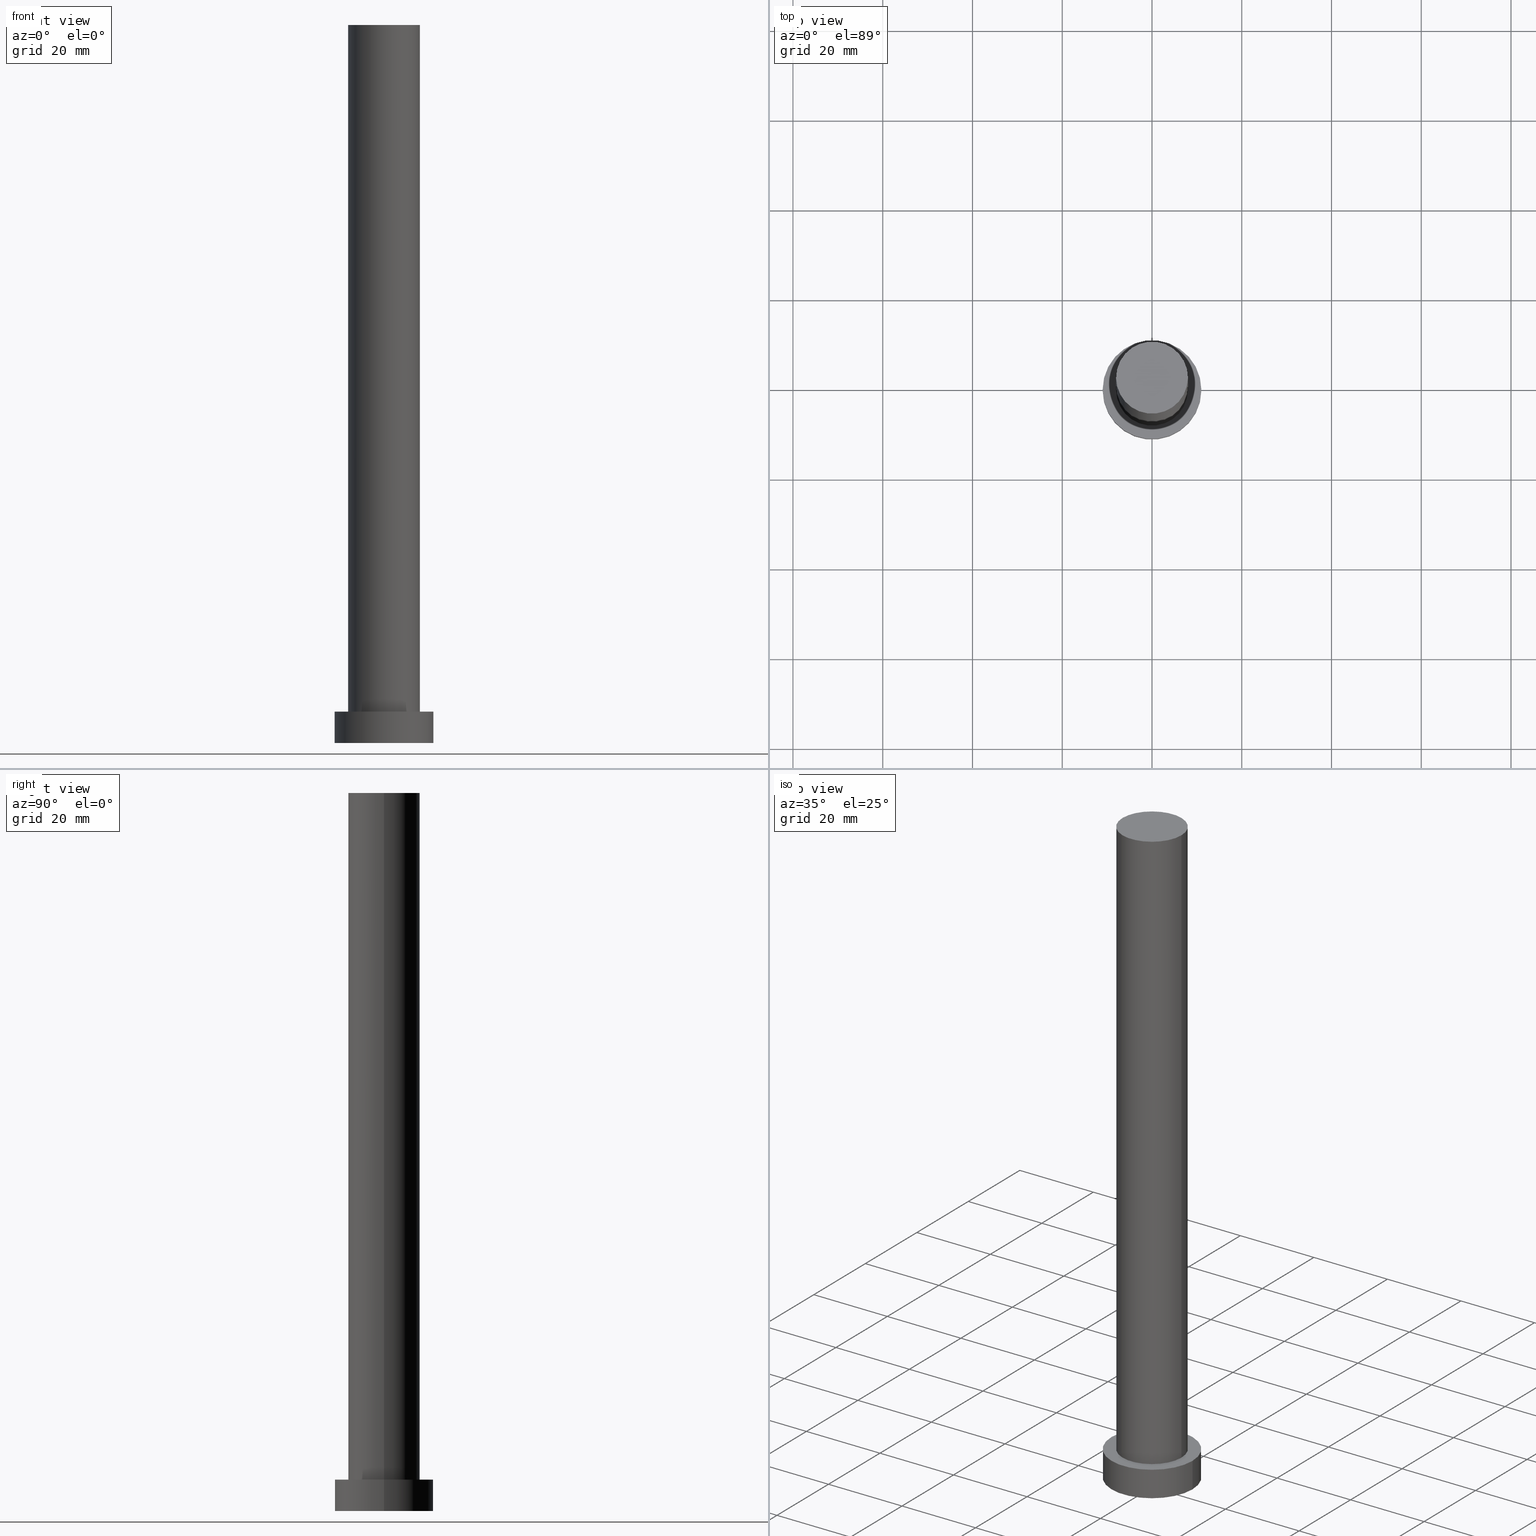
[diagram: canonical four-view strip — front | top / right | iso, engineering-drawing reading convention]
A machine part, canonical four-view strip (front | top / right | iso — engineering-drawing reading convention). The complete STEP part file that produces these views, byte-faithful:
ISO-10303-21;
HEADER;
FILE_DESCRIPTION (( 'STEP AP203' ),
    '1' );
FILE_NAME ('ddff.STEP',
    '2023-02-12T10:44:22',
    ( '' ),
    ( '' ),
    'SwSTEP 2.0',
    'SolidWorks 2019',
    '' );
FILE_SCHEMA (( 'CONFIG_CONTROL_DESIGN' ));
ENDSEC;

DATA;
#1 = DIRECTION ( 'NONE',  ( 1.000000000000000000, 0.000000000000000000, 0.000000000000000000 ) ) ;
#2 = AXIS2_PLACEMENT_3D ( 'NONE', #243, #54, #1 ) ;
#3 = DIRECTION ( 'NONE',  ( -0.000000000000000000, -0.000000000000000000, -1.000000000000000000 ) ) ;
#4 = LINE ( 'NONE', #25, #189 ) ;
#5 = CALENDAR_DATE ( 2023, 12, 2 ) ;
#6 = EDGE_LOOP ( 'NONE', ( #83, #205, #213, #76 ) ) ;
#7 = EDGE_CURVE ( 'NONE', #53, #96, #40, .T. ) ;
#8 = CARTESIAN_POINT ( 'NONE',  ( -8.000000000000000000, 0.000000000000000000, 7.000000000000000000 ) ) ;
#9 = AXIS2_PLACEMENT_3D ( 'NONE', #129, #207, #171 ) ;
#10 = APPROVAL_ROLE ( '' ) ;
#11 = DIRECTION ( 'NONE',  ( -1.000000000000000000, 0.000000000000000000, 0.000000000000000000 ) ) ;
#12 = CARTESIAN_POINT ( 'NONE',  ( 0.000000000000000000, 0.000000000000000000, 7.000000000000000000 ) ) ;
#13 = PRODUCT_DEFINITION_FORMATION_WITH_SPECIFIED_SOURCE ( 'LIBOVOLN�', '', #150, .NOT_KNOWN. ) ;
#14 = CYLINDRICAL_SURFACE ( 'NONE', #174, 8.000000000000000000 ) ;
#15 = PLANE ( 'NONE',  #151 ) ;
#16 = APPLICATION_PROTOCOL_DEFINITION ( 'international standard', 'config_control_design', 1994, #56 ) ;
#17 = CC_DESIGN_DATE_AND_TIME_ASSIGNMENT ( #204, #244, ( #197 ) ) ;
#18 = EDGE_CURVE ( 'NONE', #234, #22, #4, .T. ) ;
#19 = COORDINATED_UNIVERSAL_TIME_OFFSET ( 1, 0, .AHEAD. ) ;
#20 = EDGE_CURVE ( 'NONE', #96, #134, #135, .T. ) ;
#21 = DIRECTION ( 'NONE',  ( 1.000000000000000000, 0.000000000000000000, 0.000000000000000000 ) ) ;
#22 = VERTEX_POINT ( 'NONE', #119 ) ;
#23 = VECTOR ( 'NONE', #107, 1000.000000000000000 ) ;
#24 = CARTESIAN_POINT ( 'NONE',  ( 8.000000000000000000, 9.797174393178825657E-16, 160.0000000000000000 ) ) ;
#25 = CARTESIAN_POINT ( 'NONE',  ( -11.00000000000000000, 0.000000000000000000, 7.000000000000000000 ) ) ;
#26 = ORIENTED_EDGE ( 'NONE', *, *, #30, .T. ) ;
#27 = PERSON_AND_ORGANIZATION ( #168, #46 ) ;
#28 = DIRECTION ( 'NONE',  ( -1.000000000000000000, 0.000000000000000000, 0.000000000000000000 ) ) ;
#29 = FACE_OUTER_BOUND ( 'NONE', #209, .T. ) ;
#30 = EDGE_CURVE ( 'NONE', #74, #194, #163, .T. ) ;
#31 = APPROVAL_ROLE ( '' ) ;
#32 = EDGE_LOOP ( 'NONE', ( #62, #115, #59, #137 ) ) ;
#33 = COORDINATED_UNIVERSAL_TIME_OFFSET ( 1, 0, .AHEAD. ) ;
#34 = EDGE_LOOP ( 'NONE', ( #124, #117 ) ) ;
#35 = VECTOR ( 'NONE', #125, 1000.000000000000000 ) ;
#36 = ORIENTED_EDGE ( 'NONE', *, *, #154, .T. ) ;
#37 = UNCERTAINTY_MEASURE_WITH_UNIT (LENGTH_MEASURE( 1.000000000000000082E-05 ), #233, 'distance_accuracy_value', 'NONE');
#38 = ORIENTED_EDGE ( 'NONE', *, *, #228, .T. ) ;
#39 = EDGE_CURVE ( 'NONE', #74, #234, #112, .T. ) ;
#40 = LINE ( 'NONE', #238, #78 ) ;
#41 = LOCAL_TIME ( 11, 44, 22.00000000000000000, #19 ) ;
#42 = COORDINATED_UNIVERSAL_TIME_OFFSET ( 1, 0, .AHEAD. ) ;
#43 = DIRECTION ( 'NONE',  ( 1.000000000000000000, 0.000000000000000000, 0.000000000000000000 ) ) ;
#44 = DATE_TIME_ROLE ( 'classification_date' ) ;
#45 = CYLINDRICAL_SURFACE ( 'NONE', #246, 8.000000000000000000 ) ;
#46 = ORGANIZATION ( 'NEUR�EN�', 'NEUR�EN�', '' ) ;
#47 = DIRECTION ( 'NONE',  ( 0.000000000000000000, 0.000000000000000000, 1.000000000000000000 ) ) ;
#48 = DIRECTION ( 'NONE',  ( 1.000000000000000000, 0.000000000000000000, 0.000000000000000000 ) ) ;
#49 = CC_DESIGN_APPROVAL ( #106, ( #13 ) ) ;
#50 = APPROVAL ( #127, 'NEUR�EN�' ) ;
#51 = PERSON_AND_ORGANIZATION_ROLE ( 'creator' ) ;
#52 = CC_DESIGN_PERSON_AND_ORGANIZATION_ASSIGNMENT ( #101, #206, ( #13 ) ) ;
#53 = VERTEX_POINT ( 'NONE', #24 ) ;
#54 = DIRECTION ( 'NONE',  ( 0.000000000000000000, 0.000000000000000000, 1.000000000000000000 ) ) ;
#55 = FACE_OUTER_BOUND ( 'NONE', #100, .T. ) ;
#56 = APPLICATION_CONTEXT ( 'configuration controlled 3d designs of mechanical parts and assemblies' ) ;
#57 = DIRECTION ( 'NONE',  ( 1.000000000000000000, 0.000000000000000000, 0.000000000000000000 ) ) ;
#58 = CIRCLE ( 'NONE', #148, 11.00000000000000000 ) ;
#59 = ORIENTED_EDGE ( 'NONE', *, *, #18, .T. ) ;
#60 = APPROVAL_PERSON_ORGANIZATION ( #85, #106, #184 ) ;
#61 = PERSON_AND_ORGANIZATION ( #168, #46 ) ;
#62 = ORIENTED_EDGE ( 'NONE', *, *, #30, .F. ) ;
#63 = MECHANICAL_CONTEXT ( 'NONE', #56, 'mechanical' ) ;
#64 = DATE_AND_TIME ( #5, #110 ) ;
#65 = AXIS2_PLACEMENT_3D ( 'NONE', #97, #47, #109 ) ;
#66 = CC_DESIGN_SECURITY_CLASSIFICATION ( #214, ( #13 ) ) ;
#67 = DIRECTION ( 'NONE',  ( 1.000000000000000000, 0.000000000000000000, 0.000000000000000000 ) ) ;
#68 = PRODUCT_DEFINITION_SHAPE ( 'NONE', 'NONE',  #197 ) ;
#69 = MANIFOLD_SOLID_BREP ( 'P�idat vysunut�m3', #193 ) ;
#70 = CARTESIAN_POINT ( 'NONE',  ( -8.000000000000000000, 0.000000000000000000, 160.0000000000000000 ) ) ;
#71 = LOCAL_TIME ( 11, 44, 22.00000000000000000, #81 ) ;
#72 = ORIENTED_EDGE ( 'NONE', *, *, #18, .F. ) ;
#73 = APPROVAL_STATUS ( 'not_yet_approved' ) ;
#74 = VERTEX_POINT ( 'NONE', #121 ) ;
#75 = APPROVAL_DATE_TIME ( #253, #220 ) ;
#76 = ORIENTED_EDGE ( 'NONE', *, *, #84, .F. ) ;
#77 = ORIENTED_EDGE ( 'NONE', *, *, #39, .T. ) ;
#78 = VECTOR ( 'NONE', #218, 1000.000000000000000 ) ;
#79 = AXIS2_PLACEMENT_3D ( 'NONE', #128, #247, #92 ) ;
#80 = CARTESIAN_POINT ( 'NONE',  ( 0.000000000000000000, 0.000000000000000000, 7.000000000000000000 ) ) ;
#81 = COORDINATED_UNIVERSAL_TIME_OFFSET ( 1, 0, .AHEAD. ) ;
#82 = FACE_OUTER_BOUND ( 'NONE', #32, .T. ) ;
#83 = ORIENTED_EDGE ( 'NONE', *, *, #166, .F. ) ;
#84 = EDGE_CURVE ( 'NONE', #177, #134, #158, .T. ) ;
#85 = PERSON_AND_ORGANIZATION ( #168, #46 ) ;
#86 = CARTESIAN_POINT ( 'NONE',  ( 0.000000000000000000, 0.000000000000000000, 160.0000000000000000 ) ) ;
#87 = CALENDAR_DATE ( 2023, 12, 2 ) ;
#88 = CARTESIAN_POINT ( 'NONE',  ( 0.000000000000000000, 0.000000000000000000, 7.000000000000000000 ) ) ;
#89 = CIRCLE ( 'NONE', #2, 11.00000000000000000 ) ;
#90 = LOCAL_TIME ( 11, 44, 22.00000000000000000, #33 ) ;
#91 =( NAMED_UNIT ( * ) SI_UNIT ( $, .STERADIAN. ) SOLID_ANGLE_UNIT ( ) );
#92 = DIRECTION ( 'NONE',  ( 1.000000000000000000, 0.000000000000000000, 0.000000000000000000 ) ) ;
#93 = FACE_BOUND ( 'NONE', #34, .T. ) ;
#94 = AXIS2_PLACEMENT_3D ( 'NONE', #12, #169, #208 ) ;
#95 = PERSON_AND_ORGANIZATION_ROLE ( 'design_owner' ) ;
#96 = VERTEX_POINT ( 'NONE', #157 ) ;
#97 = CARTESIAN_POINT ( 'NONE',  ( 0.000000000000000000, 0.000000000000000000, 160.0000000000000000 ) ) ;
#98 = CC_DESIGN_PERSON_AND_ORGANIZATION_ASSIGNMENT ( #61, #162, ( #214 ) ) ;
#99 = DIRECTION ( 'NONE',  ( 1.000000000000000000, 0.000000000000000000, -0.000000000000000000 ) ) ;
#100 = EDGE_LOOP ( 'NONE', ( #200, #138 ) ) ;
#101 = PERSON_AND_ORGANIZATION ( #168, #46 ) ;
#102 = DESIGN_CONTEXT ( 'detailed design', #210, 'design' ) ;
#103 = DIRECTION ( 'NONE',  ( 0.000000000000000000, 0.000000000000000000, 1.000000000000000000 ) ) ;
#104 = APPROVAL_STATUS ( 'not_yet_approved' ) ;
#105 = DIRECTION ( 'NONE',  ( 0.000000000000000000, 0.000000000000000000, 1.000000000000000000 ) ) ;
#106 = APPROVAL ( #104, 'NEUR�EN�' ) ;
#107 = DIRECTION ( 'NONE',  ( -0.000000000000000000, -0.000000000000000000, -1.000000000000000000 ) ) ;
#108 = AXIS2_PLACEMENT_3D ( 'NONE', #86, #105, #179 ) ;
#109 = DIRECTION ( 'NONE',  ( 1.000000000000000000, 0.000000000000000000, 0.000000000000000000 ) ) ;
#110 = LOCAL_TIME ( 11, 44, 22.00000000000000000, #42 ) ;
#111 = CARTESIAN_POINT ( 'NONE',  ( -11.00000000000000000, 0.000000000000000000, 7.000000000000000000 ) ) ;
#112 = CIRCLE ( 'NONE', #225, 11.00000000000000000 ) ;
#113 = FACE_OUTER_BOUND ( 'NONE', #211, .T. ) ;
#114 = CIRCLE ( 'NONE', #173, 8.000000000000000000 ) ;
#115 = ORIENTED_EDGE ( 'NONE', *, *, #228, .F. ) ;
#116 = ORIENTED_EDGE ( 'NONE', *, *, #84, .T. ) ;
#117 = ORIENTED_EDGE ( 'NONE', *, *, #20, .F. ) ;
#118 = AXIS2_PLACEMENT_3D ( 'NONE', #176, #221, #43 ) ;
#119 = CARTESIAN_POINT ( 'NONE',  ( -11.00000000000000000, 0.000000000000000000, 0.000000000000000000 ) ) ;
#120 = EDGE_CURVE ( 'NONE', #177, #53, #114, .T. ) ;
#121 = CARTESIAN_POINT ( 'NONE',  ( 11.00000000000000000, 1.347111479062088405E-15, 7.000000000000000000 ) ) ;
#122 = CARTESIAN_POINT ( 'NONE',  ( 0.000000000000000000, 0.000000000000000000, 160.0000000000000000 ) ) ;
#123 = AXIS2_PLACEMENT_3D ( 'NONE', #160, #236, #165 ) ;
#124 = ORIENTED_EDGE ( 'NONE', *, *, #241, .F. ) ;
#125 = DIRECTION ( 'NONE',  ( -0.000000000000000000, -0.000000000000000000, -1.000000000000000000 ) ) ;
#126 = PERSON_AND_ORGANIZATION ( #168, #46 ) ;
#127 = APPROVAL_STATUS ( 'not_yet_approved' ) ;
#128 = CARTESIAN_POINT ( 'NONE',  ( 0.000000000000000000, 0.000000000000000000, 7.000000000000000000 ) ) ;
#129 = CARTESIAN_POINT ( 'NONE',  ( 0.000000000000000000, 0.000000000000000000, 7.000000000000000000 ) ) ;
#130 = CIRCLE ( 'NONE', #65, 8.000000000000000000 ) ;
#131 = CARTESIAN_POINT ( 'NONE',  ( 0.000000000000000000, 0.000000000000000000, 160.0000000000000000 ) ) ;
#132 = PRODUCT_RELATED_PRODUCT_CATEGORY ( 'detail', '', ( #150 ) ) ;
#133 = AXIS2_PLACEMENT_3D ( 'NONE', #88, #167, #67 ) ;
#134 = VERTEX_POINT ( 'NONE', #8 ) ;
#135 = CIRCLE ( 'NONE', #118, 8.000000000000000000 ) ;
#136 = CARTESIAN_POINT ( 'NONE',  ( 0.000000000000000000, 0.000000000000000000, 0.000000000000000000 ) ) ;
#137 = ORIENTED_EDGE ( 'NONE', *, *, #161, .T. ) ;
#138 = ORIENTED_EDGE ( 'NONE', *, *, #166, .T. ) ;
#139 = DIRECTION ( 'NONE',  ( 0.000000000000000000, 0.000000000000000000, 1.000000000000000000 ) ) ;
#140 = ADVANCED_FACE ( 'NONE', ( #55 ), #201, .T. ) ;
#141 = CALENDAR_DATE ( 2023, 12, 2 ) ;
#142 = ORIENTED_EDGE ( 'NONE', *, *, #154, .F. ) ;
#143 = DATE_AND_TIME ( #141, #250 ) ;
#144 = ADVANCED_FACE ( 'NONE', ( #82 ), #240, .T. ) ;
#145 = CARTESIAN_POINT ( 'NONE',  ( -8.000000000000000000, 0.000000000000000000, 160.0000000000000000 ) ) ;
#146 = CARTESIAN_POINT ( 'NONE',  ( 0.000000000000000000, 0.000000000000000000, 0.000000000000000000 ) ) ;
#147 = APPROVAL_DATE_TIME ( #64, #50 ) ;
#148 = AXIS2_PLACEMENT_3D ( 'NONE', #146, #223, #21 ) ;
#149 = APPROVAL_PERSON_ORGANIZATION ( #126, #50, #10 ) ;
#150 = PRODUCT ( 'ddff', 'ddff', '', ( #63 ) ) ;
#151 = AXIS2_PLACEMENT_3D ( 'NONE', #136, #152, #99 ) ;
#152 = DIRECTION ( 'NONE',  ( 0.000000000000000000, 0.000000000000000000, 1.000000000000000000 ) ) ;
#153 = PERSON_AND_ORGANIZATION ( #168, #46 ) ;
#154 = EDGE_CURVE ( 'NONE', #194, #22, #89, .T. ) ;
#155 = ADVANCED_BREP_SHAPE_REPRESENTATION ( 'ddff', ( #69, #219 ), #183 ) ;
#156 = ORIENTED_EDGE ( 'NONE', *, *, #7, .F. ) ;
#157 = CARTESIAN_POINT ( 'NONE',  ( 8.000000000000000000, 9.797174393178825657E-16, 7.000000000000000000 ) ) ;
#158 = LINE ( 'NONE', #145, #35 ) ;
#159 = CALENDAR_DATE ( 2023, 12, 2 ) ;
#160 = CARTESIAN_POINT ( 'NONE',  ( 0.000000000000000000, 0.000000000000000000, 7.000000000000000000 ) ) ;
#161 = EDGE_CURVE ( 'NONE', #22, #194, #58, .T. ) ;
#162 = PERSON_AND_ORGANIZATION_ROLE ( 'classification_officer' ) ;
#163 = LINE ( 'NONE', #242, #23 ) ;
#164 = SECURITY_CLASSIFICATION_LEVEL ( 'unclassified' ) ;
#165 = DIRECTION ( 'NONE',  ( -1.000000000000000000, 0.000000000000000000, 0.000000000000000000 ) ) ;
#166 = EDGE_CURVE ( 'NONE', #53, #177, #130, .T. ) ;
#167 = DIRECTION ( 'NONE',  ( 0.000000000000000000, 0.000000000000000000, 1.000000000000000000 ) ) ;
#168 = PERSON ( 'NEUR�EN�', 'NEUR�EN�', 'NEUR�EN�', ('NEUR�EN�'), ('NEUR�EN�'), ('NEUR�EN�') ) ;
#169 = DIRECTION ( 'NONE',  ( -0.000000000000000000, -0.000000000000000000, -1.000000000000000000 ) ) ;
#170 = CC_DESIGN_PERSON_AND_ORGANIZATION_ASSIGNMENT ( #249, #95, ( #150 ) ) ;
#171 = DIRECTION ( 'NONE',  ( 1.000000000000000000, 0.000000000000000000, -0.000000000000000000 ) ) ;
#172 = CALENDAR_DATE ( 2023, 12, 2 ) ;
#173 = AXIS2_PLACEMENT_3D ( 'NONE', #122, #103, #182 ) ;
#174 = AXIS2_PLACEMENT_3D ( 'NONE', #224, #248, #28 ) ;
#175 = CC_DESIGN_PERSON_AND_ORGANIZATION_ASSIGNMENT ( #27, #186, ( #13 ) ) ;
#176 = CARTESIAN_POINT ( 'NONE',  ( 0.000000000000000000, 0.000000000000000000, 7.000000000000000000 ) ) ;
#177 = VERTEX_POINT ( 'NONE', #70 ) ;
#178 = CC_DESIGN_APPROVAL ( #50, ( #214 ) ) ;
#179 = DIRECTION ( 'NONE',  ( 1.000000000000000000, 0.000000000000000000, -0.000000000000000000 ) ) ;
#180 = APPROVAL_DATE_TIME ( #217, #106 ) ;
#181 = ORIENTED_EDGE ( 'NONE', *, *, #39, .F. ) ;
#182 = DIRECTION ( 'NONE',  ( 1.000000000000000000, 0.000000000000000000, 0.000000000000000000 ) ) ;
#183 =( GEOMETRIC_REPRESENTATION_CONTEXT ( 3 ) GLOBAL_UNCERTAINTY_ASSIGNED_CONTEXT ( ( #37 ) ) GLOBAL_UNIT_ASSIGNED_CONTEXT ( ( #233, #226, #91 ) ) REPRESENTATION_CONTEXT ( 'NONE', 'WORKASPACE' ) );
#184 = APPROVAL_ROLE ( '' ) ;
#185 = PLANE ( 'NONE',  #9 ) ;
#186 = PERSON_AND_ORGANIZATION_ROLE ( 'design_supplier' ) ;
#187 = DIRECTION ( 'NONE',  ( -0.000000000000000000, -0.000000000000000000, -1.000000000000000000 ) ) ;
#188 = CYLINDRICAL_SURFACE ( 'NONE', #94, 11.00000000000000000 ) ;
#189 = VECTOR ( 'NONE', #3, 1000.000000000000000 ) ;
#190 = CARTESIAN_POINT ( 'NONE',  ( 11.00000000000000000, 1.347111479062088405E-15, 0.000000000000000000 ) ) ;
#191 = CARTESIAN_POINT ( 'NONE',  ( 0.000000000000000000, 0.000000000000000000, 0.000000000000000000 ) ) ;
#192 = CC_DESIGN_DATE_AND_TIME_ASSIGNMENT ( #143, #44, ( #214 ) ) ;
#193 = CLOSED_SHELL ( 'NONE', ( #212, #252, #144, #199, #254, #232, #140 ) ) ;
#194 = VERTEX_POINT ( 'NONE', #190 ) ;
#195 = CC_DESIGN_APPROVAL ( #220, ( #197 ) ) ;
#196 = PERSON_AND_ORGANIZATION ( #168, #46 ) ;
#197 = PRODUCT_DEFINITION ( 'NEZN�M�', '', #13, #102 ) ;
#198 = CIRCLE ( 'NONE', #79, 11.00000000000000000 ) ;
#199 = ADVANCED_FACE ( 'NONE', ( #93, #245 ), #185, .T. ) ;
#200 = ORIENTED_EDGE ( 'NONE', *, *, #120, .T. ) ;
#201 = PLANE ( 'NONE',  #108 ) ;
#202 = EDGE_LOOP ( 'NONE', ( #38, #77 ) ) ;
#203 = APPROVAL_PERSON_ORGANIZATION ( #196, #220, #31 ) ;
#204 = DATE_AND_TIME ( #87, #90 ) ;
#205 = ORIENTED_EDGE ( 'NONE', *, *, #7, .T. ) ;
#206 = PERSON_AND_ORGANIZATION_ROLE ( 'creator' ) ;
#207 = DIRECTION ( 'NONE',  ( 0.000000000000000000, 0.000000000000000000, 1.000000000000000000 ) ) ;
#208 = DIRECTION ( 'NONE',  ( -1.000000000000000000, 0.000000000000000000, 0.000000000000000000 ) ) ;
#209 = EDGE_LOOP ( 'NONE', ( #181, #26, #36, #72 ) ) ;
#210 = APPLICATION_CONTEXT ( 'configuration controlled 3d designs of mechanical parts and assemblies' ) ;
#211 = EDGE_LOOP ( 'NONE', ( #235, #142 ) ) ;
#212 = ADVANCED_FACE ( 'NONE', ( #227 ), #14, .T. ) ;
#213 = ORIENTED_EDGE ( 'NONE', *, *, #20, .T. ) ;
#214 = SECURITY_CLASSIFICATION ( '', '', #164 ) ;
#215 = EDGE_LOOP ( 'NONE', ( #156, #255, #116, #216 ) ) ;
#216 = ORIENTED_EDGE ( 'NONE', *, *, #241, .T. ) ;
#217 = DATE_AND_TIME ( #159, #71 ) ;
#218 = DIRECTION ( 'NONE',  ( -0.000000000000000000, -0.000000000000000000, -1.000000000000000000 ) ) ;
#219 = AXIS2_PLACEMENT_3D ( 'NONE', #191, #230, #48 ) ;
#220 = APPROVAL ( #73, 'NEUR�EN�' ) ;
#221 = DIRECTION ( 'NONE',  ( 0.000000000000000000, 0.000000000000000000, 1.000000000000000000 ) ) ;
#222 = COORDINATED_UNIVERSAL_TIME_OFFSET ( 1, 0, .AHEAD. ) ;
#223 = DIRECTION ( 'NONE',  ( 0.000000000000000000, 0.000000000000000000, 1.000000000000000000 ) ) ;
#224 = CARTESIAN_POINT ( 'NONE',  ( 0.000000000000000000, 0.000000000000000000, 160.0000000000000000 ) ) ;
#225 = AXIS2_PLACEMENT_3D ( 'NONE', #80, #139, #57 ) ;
#226 =( NAMED_UNIT ( * ) PLANE_ANGLE_UNIT ( ) SI_UNIT ( $, .RADIAN. ) );
#227 = FACE_OUTER_BOUND ( 'NONE', #6, .T. ) ;
#228 = EDGE_CURVE ( 'NONE', #234, #74, #198, .T. ) ;
#229 = FACE_OUTER_BOUND ( 'NONE', #215, .T. ) ;
#230 = DIRECTION ( 'NONE',  ( 0.000000000000000000, 0.000000000000000000, 1.000000000000000000 ) ) ;
#231 = CIRCLE ( 'NONE', #133, 8.000000000000000000 ) ;
#232 = ADVANCED_FACE ( 'NONE', ( #229 ), #45, .T. ) ;
#233 =( LENGTH_UNIT ( ) NAMED_UNIT ( * ) SI_UNIT ( .MILLI., .METRE. ) );
#234 = VERTEX_POINT ( 'NONE', #111 ) ;
#235 = ORIENTED_EDGE ( 'NONE', *, *, #161, .F. ) ;
#236 = DIRECTION ( 'NONE',  ( -0.000000000000000000, -0.000000000000000000, -1.000000000000000000 ) ) ;
#237 = CC_DESIGN_PERSON_AND_ORGANIZATION_ASSIGNMENT ( #153, #51, ( #197 ) ) ;
#238 = CARTESIAN_POINT ( 'NONE',  ( 8.000000000000000000, 9.797174393178825657E-16, 160.0000000000000000 ) ) ;
#239 = SHAPE_DEFINITION_REPRESENTATION ( #68, #155 ) ;
#240 = CYLINDRICAL_SURFACE ( 'NONE', #123, 11.00000000000000000 ) ;
#241 = EDGE_CURVE ( 'NONE', #134, #96, #231, .T. ) ;
#242 = CARTESIAN_POINT ( 'NONE',  ( 11.00000000000000000, 1.347111479062088405E-15, 7.000000000000000000 ) ) ;
#243 = CARTESIAN_POINT ( 'NONE',  ( 0.000000000000000000, 0.000000000000000000, 0.000000000000000000 ) ) ;
#244 = DATE_TIME_ROLE ( 'creation_date' ) ;
#245 = FACE_OUTER_BOUND ( 'NONE', #202, .T. ) ;
#246 = AXIS2_PLACEMENT_3D ( 'NONE', #131, #187, #11 ) ;
#247 = DIRECTION ( 'NONE',  ( 0.000000000000000000, 0.000000000000000000, 1.000000000000000000 ) ) ;
#248 = DIRECTION ( 'NONE',  ( -0.000000000000000000, -0.000000000000000000, -1.000000000000000000 ) ) ;
#249 = PERSON_AND_ORGANIZATION ( #168, #46 ) ;
#250 = LOCAL_TIME ( 11, 44, 22.00000000000000000, #222 ) ;
#251 = APPLICATION_PROTOCOL_DEFINITION ( 'international standard', 'config_control_design', 1994, #210 ) ;
#252 = ADVANCED_FACE ( 'NONE', ( #29 ), #188, .T. ) ;
#253 = DATE_AND_TIME ( #172, #41 ) ;
#254 = ADVANCED_FACE ( 'NONE', ( #113 ), #15, .F. ) ;
#255 = ORIENTED_EDGE ( 'NONE', *, *, #120, .F. ) ;
ENDSEC;
END-ISO-10303-21;
